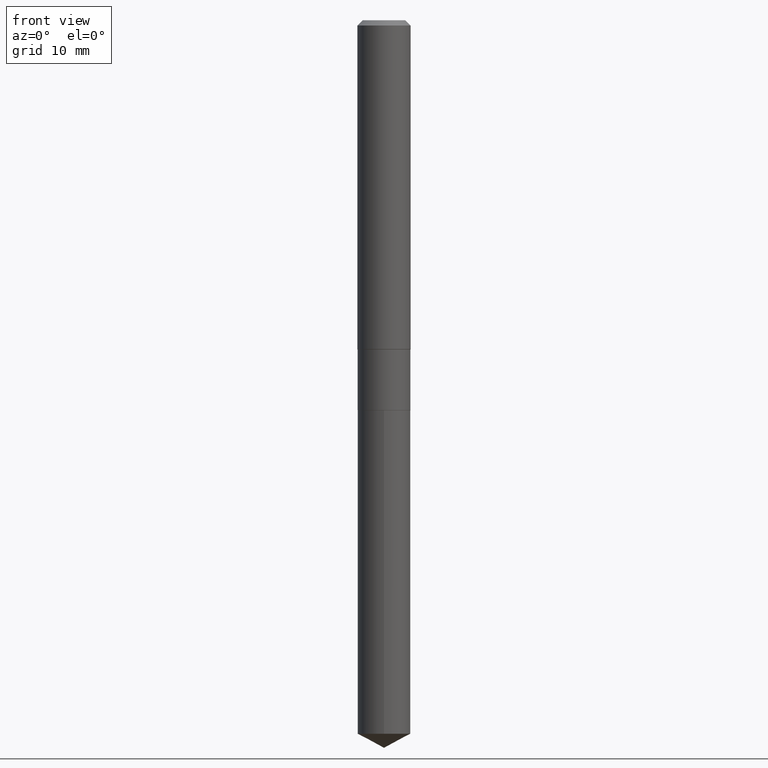
[diagram: clean part render]
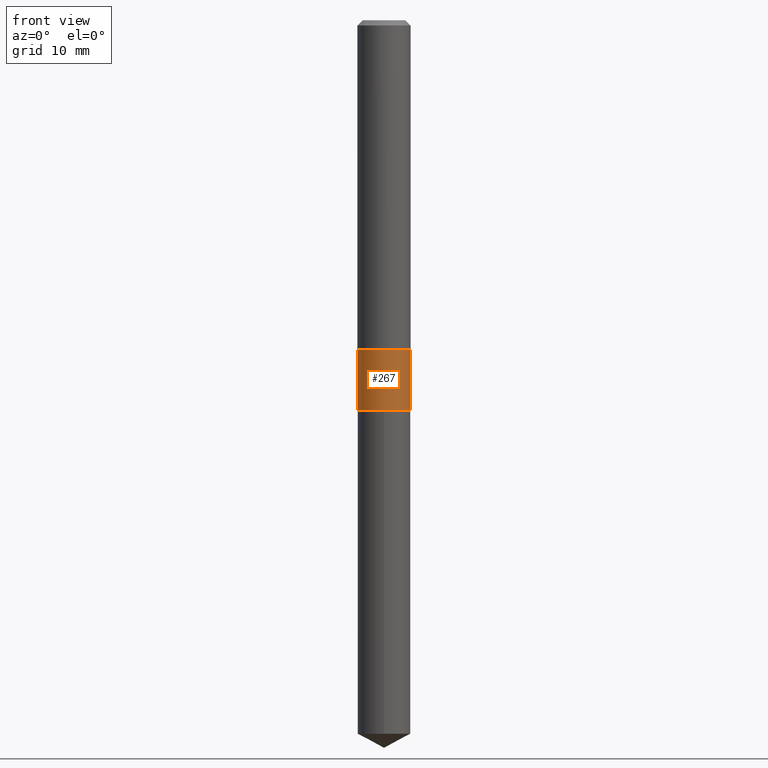
[diagram: same view with one face highlighted and labeled with its STEP entity id]
A machine part, front view. The second image highlights one B-rep face of the part: STEP entity #267.
In plain terms, the highlighted cylindrical surface (edge-blend (fillet) strip) has radius 2.9769 mm, axis along (-0, 0, 1).
Its self-contained STEP definition (entity closure, byte-faithful):
#5 = AXIS2_PLACEMENT_3D ( 'NONE', #394, #54, #248 ) ;
#8 = CARTESIAN_POINT ( 'NONE',  ( 0.1171999999999999709, -5.918759165606896047E-15, -1.460799999999999876 ) ) ;
#26 = CARTESIAN_POINT ( 'NONE',  ( 0.1171999999999999986, -6.858316793889587922E-15, -1.729899999999999993 ) ) ;
#39 = VERTEX_POINT ( 'NONE', #124 ) ;
#50 = AXIS2_PLACEMENT_3D ( 'NONE', #277, #347, #422 ) ;
#54 = DIRECTION ( 'NONE',  ( -2.445468806185136597E-29, 3.491481338843145583E-15, 1.000000000000000000 ) ) ;
#55 = EDGE_CURVE ( 'NONE', #294, #330, #102, .T. ) ;
#65 = LINE ( 'NONE', #171, #410 ) ;
#89 = VERTEX_POINT ( 'NONE', #8 ) ;
#92 = CIRCLE ( 'NONE', #5, 0.1171999999999999709 ) ;
#98 = EDGE_CURVE ( 'NONE', #294, #39, #387, .T. ) ;
#102 = CIRCLE ( 'NONE', #50, 0.1171999999999999986 ) ;
#124 = CARTESIAN_POINT ( 'NONE',  ( -0.1171999999999999709, -4.737378667612574713E-15, -1.460799999999999876 ) ) ;
#133 = AXIS2_PLACEMENT_3D ( 'NONE', #349, #328, #181 ) ;
#151 = EDGE_LOOP ( 'NONE', ( #226, #255, #430, #221 ) ) ;
#171 = CARTESIAN_POINT ( 'NONE',  ( 0.1171999999999999847, -8.184032258248303567E-16, 5.714879181232835774E-30 ) ) ;
#181 = DIRECTION ( 'NONE',  ( 1.000000000000000000, -6.982962677686266711E-15, 4.876176775795935793E-29 ) ) ;
#183 = FACE_OUTER_BOUND ( 'NONE', #151, .T. ) ;
#207 = EDGE_CURVE ( 'NONE', #39, #89, #92, .T. ) ;
#221 = ORIENTED_EDGE ( 'NONE', *, *, #207, .F. ) ;
#226 = ORIENTED_EDGE ( 'NONE', *, *, #98, .F. ) ;
#240 = CYLINDRICAL_SURFACE ( 'NONE', #133, 0.1171999999999999847 ) ;
#248 = DIRECTION ( 'NONE',  ( 1.000000000000000000, -6.982962677686263555E-15, 0.000000000000000000 ) ) ;
#253 = CARTESIAN_POINT ( 'NONE',  ( -0.1172000000000000125, -4.737378667612574713E-15, -1.729899999999999993 ) ) ;
#255 = ORIENTED_EDGE ( 'NONE', *, *, #55, .T. ) ;
#267 = ADVANCED_FACE ( 'NONE', ( #183 ), #240, .T. ) ;
#276 = CARTESIAN_POINT ( 'NONE',  ( -0.1171999999999999847, 8.327560863108373095E-16, -5.764991925778748420E-30 ) ) ;
#277 = CARTESIAN_POINT ( 'NONE',  ( 4.230416487819667730E-29, -6.039913568064757072E-15, -1.729899999999999993 ) ) ;
#294 = VERTEX_POINT ( 'NONE', #253 ) ;
#312 = DIRECTION ( 'NONE',  ( -2.445468806185136877E-29, 3.491481338843145188E-15, 1.000000000000000000 ) ) ;
#320 = VECTOR ( 'NONE', #312, 39.37007874015748143 ) ;
#328 = DIRECTION ( 'NONE',  ( -2.445468806185136597E-29, 3.491481338843145583E-15, 1.000000000000000000 ) ) ;
#330 = VERTEX_POINT ( 'NONE', #26 ) ;
#347 = DIRECTION ( 'NONE',  ( -2.445468806185136597E-29, 3.491481338843145583E-15, 1.000000000000000000 ) ) ;
#349 = CARTESIAN_POINT ( 'NONE',  ( 0.000000000000000000, 0.000000000000000000, 0.000000000000000000 ) ) ;
#356 = DIRECTION ( 'NONE',  ( -2.445468806185136877E-29, 3.491481338843145188E-15, 1.000000000000000000 ) ) ;
#380 = EDGE_CURVE ( 'NONE', #330, #89, #65, .T. ) ;
#387 = LINE ( 'NONE', #276, #320 ) ;
#394 = CARTESIAN_POINT ( 'NONE',  ( 3.572340832075246748E-29, -5.100355939782065986E-15, -1.460799999999999876 ) ) ;
#410 = VECTOR ( 'NONE', #356, 39.37007874015748143 ) ;
#422 = DIRECTION ( 'NONE',  ( 1.000000000000000000, -6.982962677686269866E-15, 0.000000000000000000 ) ) ;
#430 = ORIENTED_EDGE ( 'NONE', *, *, #380, .T. ) ;